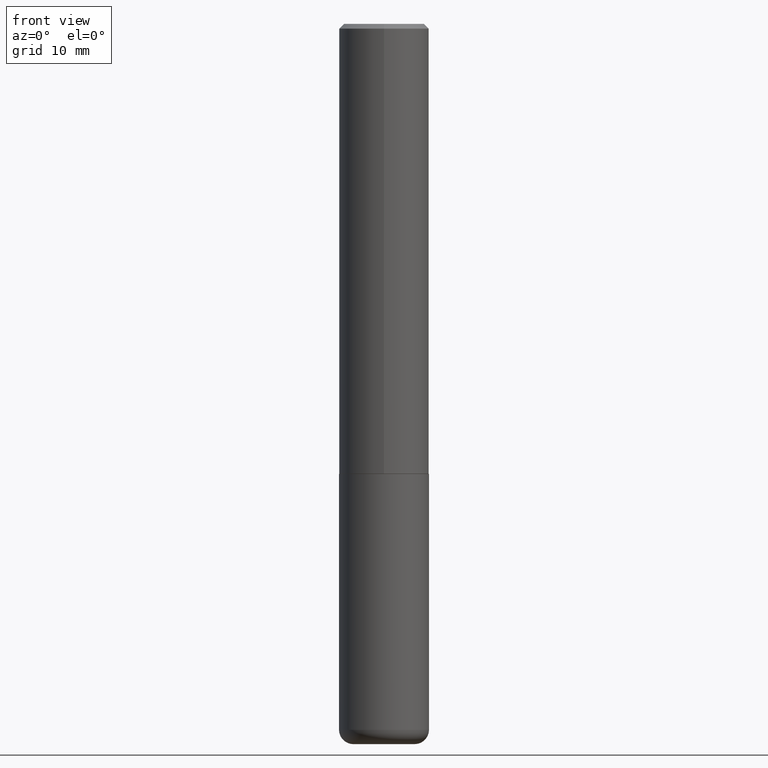
[diagram: clean part render]
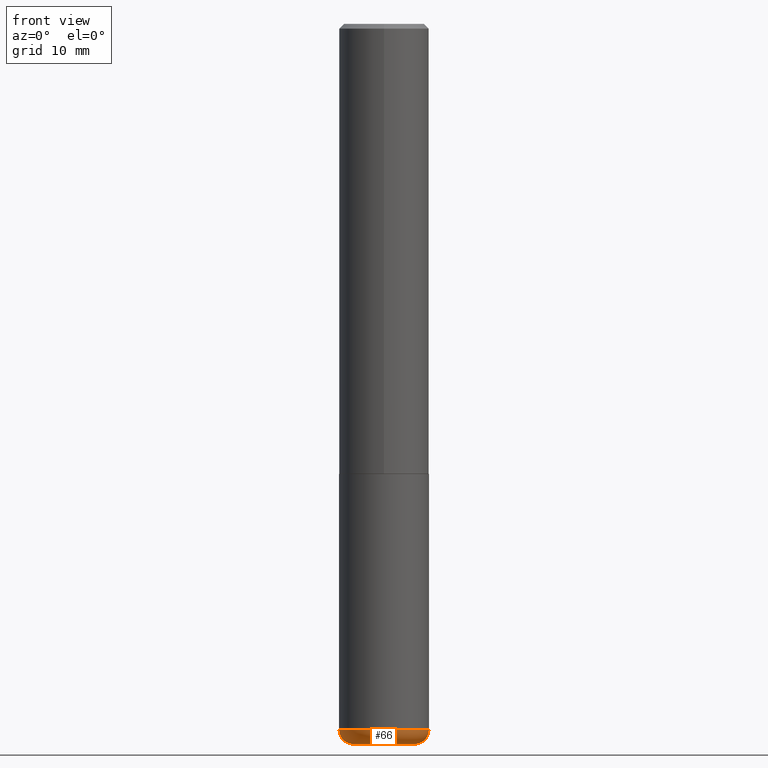
[diagram: same view with one face highlighted and labeled with its STEP entity id]
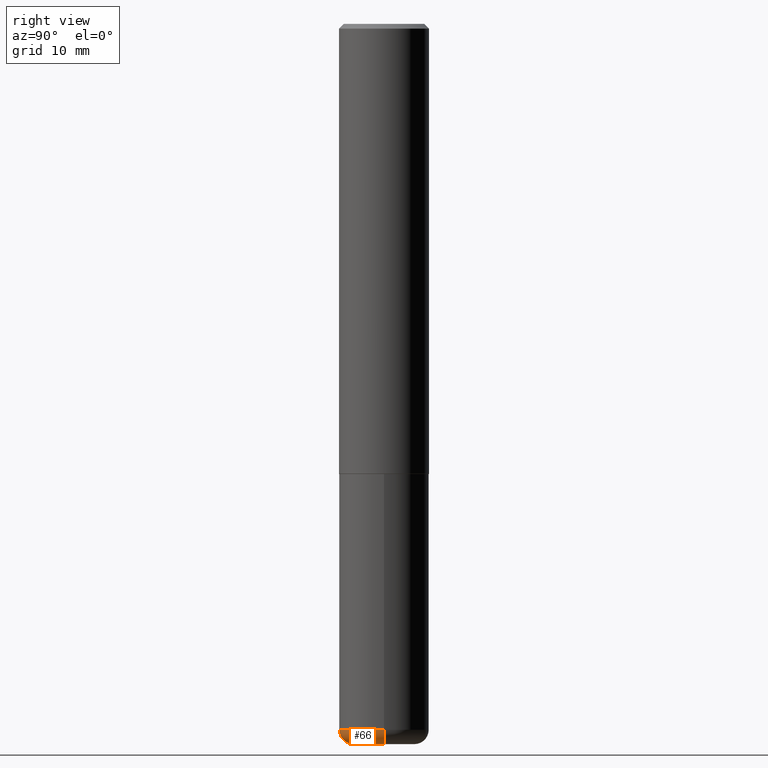
[diagram: same view with one face highlighted and labeled with its STEP entity id]
A machine part, front view. The second image highlights one B-rep face of the part: STEP entity #66.
A second angle (right view) of the same face is appended — the face is thin or edge-on in the first view.
In plain terms, the highlighted toroidal blend (fillet) surface has major radius 3.2385 mm and minor (blend) radius 1.524 mm.
Its self-contained STEP definition (entity closure, byte-faithful):
#6 = CARTESIAN_POINT ( 'NONE',  ( -0.1275000000000000022, -9.250594767541985380E-15, -3.000000000000000444 ) ) ;
#48 = AXIS2_PLACEMENT_3D ( 'NONE', #372, #172, #140 ) ;
#50 = VERTEX_POINT ( 'NONE', #188 ) ;
#52 = ORIENTED_EDGE ( 'NONE', *, *, #215, .T. ) ;
#54 = ORIENTED_EDGE ( 'NONE', *, *, #385, .F. ) ;
#66 = ADVANCED_FACE ( 'NONE', ( #357 ), #203, .T. ) ;
#104 = DIRECTION ( 'NONE',  ( 1.000000000000000000, -6.982962677686260400E-15, 0.000000000000000000 ) ) ;
#108 = AXIS2_PLACEMENT_3D ( 'NONE', #394, #204, #160 ) ;
#113 = DIRECTION ( 'NONE',  ( 7.105427357601001859E-15, 1.000000000000000000, -3.491481338843145583E-15 ) ) ;
#123 = CARTESIAN_POINT ( 'NONE',  ( 7.189678290184301639E-29, -1.026495513619884961E-14, -2.940000000000000391 ) ) ;
#136 = AXIS2_PLACEMENT_3D ( 'NONE', #123, #153, #260 ) ;
#140 = DIRECTION ( 'NONE',  ( 1.000000000000000000, -6.982962677686270655E-15, 0.000000000000000000 ) ) ;
#153 = DIRECTION ( 'NONE',  ( -2.445468806185136597E-29, 3.491481338843145583E-15, 1.000000000000000000 ) ) ;
#160 = DIRECTION ( 'NONE',  ( 1.000000000000000000, -6.982962677686260400E-15, 0.000000000000000000 ) ) ;
#165 = EDGE_CURVE ( 'NONE', #210, #50, #296, .T. ) ;
#172 = DIRECTION ( 'NONE',  ( -6.982962677686266711E-15, -1.000000000000000000, 3.491481338843145583E-15 ) ) ;
#188 = CARTESIAN_POINT ( 'NONE',  ( 0.1875000000000000278, -1.157426063826502304E-14, -2.940000000000000391 ) ) ;
#201 = AXIS2_PLACEMENT_3D ( 'NONE', #359, #300, #104 ) ;
#203 = TOROIDAL_SURFACE ( 'NONE', #136, 0.1275000000000000022, 0.05999999999999997696 ) ;
#204 = DIRECTION ( 'NONE',  ( -2.445468806185136597E-29, 3.491481338843145583E-15, 1.000000000000000000 ) ) ;
#210 = VERTEX_POINT ( 'NONE', #268 ) ;
#215 = EDGE_CURVE ( 'NONE', #264, #406, #284, .T. ) ;
#242 = ORIENTED_EDGE ( 'NONE', *, *, #370, .T. ) ;
#247 = DIRECTION ( 'NONE',  ( -1.000000000000000000, 7.105427357600993970E-15, 0.000000000000000000 ) ) ;
#260 = DIRECTION ( 'NONE',  ( 1.000000000000000000, -6.982962677686263555E-15, 4.883557194083111219E-29 ) ) ;
#264 = VERTEX_POINT ( 'NONE', #6 ) ;
#268 = CARTESIAN_POINT ( 'NONE',  ( -0.1875000000000000278, -8.932687506648661766E-15, -2.940000000000000391 ) ) ;
#274 = EDGE_LOOP ( 'NONE', ( #54, #52, #242, #341 ) ) ;
#279 = CARTESIAN_POINT ( 'NONE',  ( -0.1275000000000000022, -9.359013148104722256E-15, -2.940000000000000391 ) ) ;
#284 = CIRCLE ( 'NONE', #201, 0.1275000000000000022 ) ;
#296 = CIRCLE ( 'NONE', #108, 0.1875000000000000555 ) ;
#297 = CIRCLE ( 'NONE', #348, 0.05999999999999997696 ) ;
#300 = DIRECTION ( 'NONE',  ( -2.445468806185136597E-29, 3.491481338843145583E-15, 1.000000000000000000 ) ) ;
#341 = ORIENTED_EDGE ( 'NONE', *, *, #165, .F. ) ;
#348 = AXIS2_PLACEMENT_3D ( 'NONE', #279, #113, #247 ) ;
#357 = FACE_OUTER_BOUND ( 'NONE', #274, .T. ) ;
#359 = CARTESIAN_POINT ( 'NONE',  ( 7.336406418555409790E-29, -1.047444401652943635E-14, -3.000000000000000444 ) ) ;
#360 = CIRCLE ( 'NONE', #48, 0.05999999999999997696 ) ;
#370 = EDGE_CURVE ( 'NONE', #406, #50, #360, .T. ) ;
#372 = CARTESIAN_POINT ( 'NONE',  ( 0.1275000000000000022, -1.115528287760384799E-14, -2.940000000000000391 ) ) ;
#385 = EDGE_CURVE ( 'NONE', #264, #210, #297, .T. ) ;
#394 = CARTESIAN_POINT ( 'NONE',  ( 7.189678290184301639E-29, -1.026495513619884961E-14, -2.940000000000000391 ) ) ;
#398 = CARTESIAN_POINT ( 'NONE',  ( 0.1275000000000000022, -1.136477175793443473E-14, -3.000000000000000444 ) ) ;
#406 = VERTEX_POINT ( 'NONE', #398 ) ;